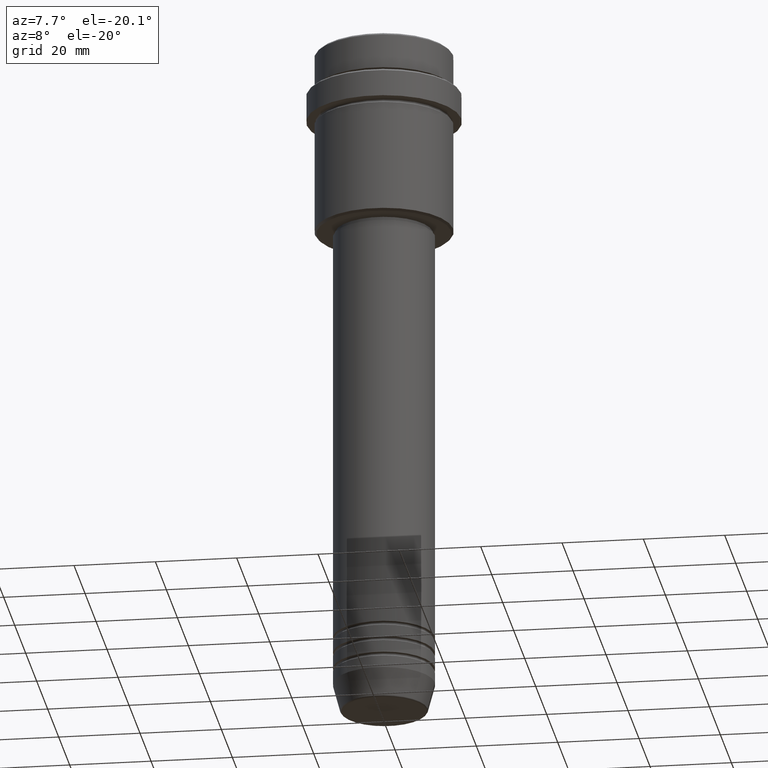
[diagram: clean part render]
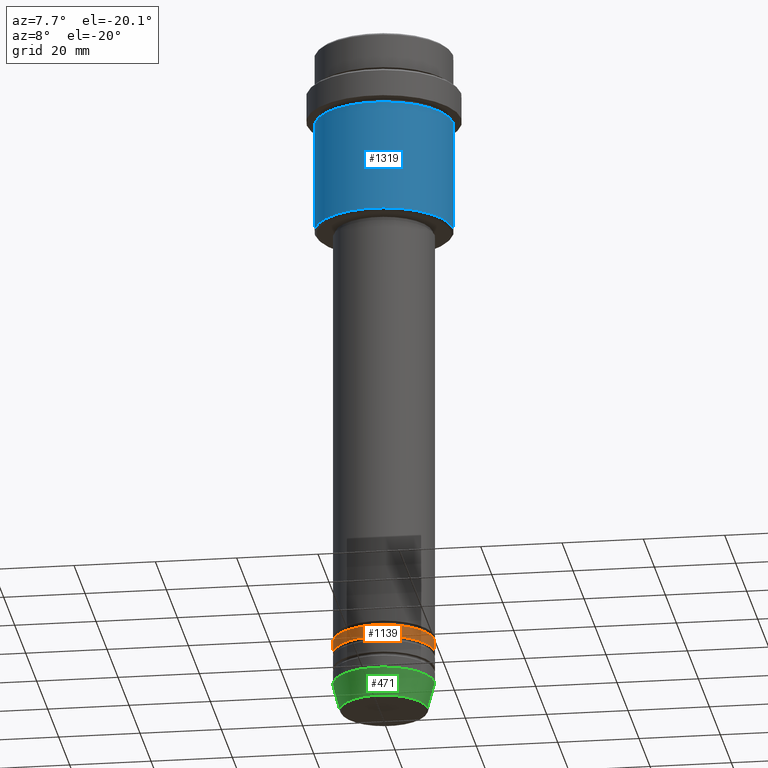
[diagram: same view with three faces highlighted in distinct colors, each labeled with its STEP entity id]
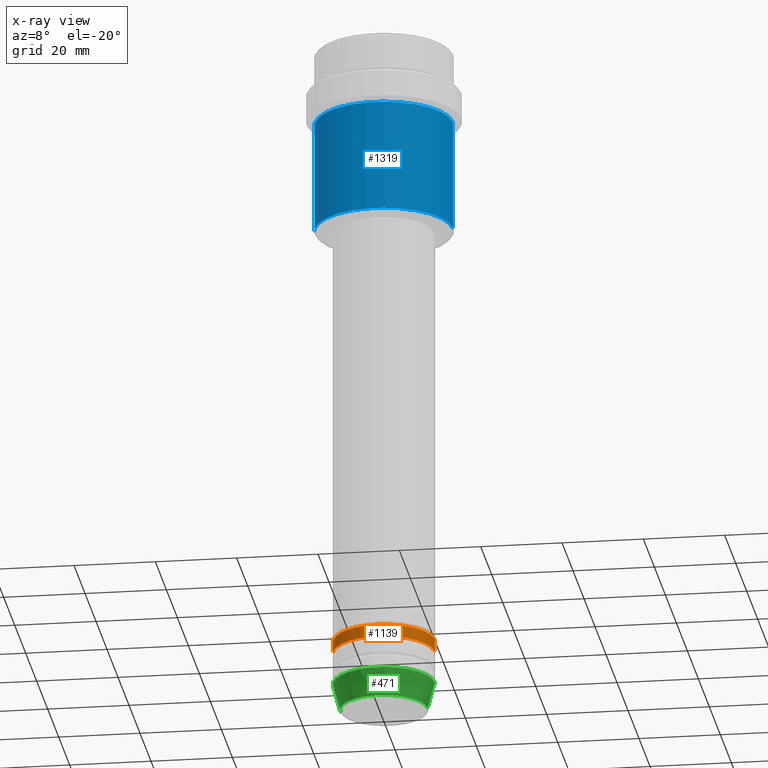
[diagram: x-ray of the same camera — body ghosted, the three highlighted faces saturated]
A machine part, auxiliary view with three faces highlighted in distinct colors.
The next image is the same camera in x-ray (body ghosted, the three faces saturated) — at least one of them is partly hidden behind the body in this view.
Their STEP definitions:

[orange] entity #1139 — the highlighted cylindrical surface (partial cylindrical patch) has radius 12.5 mm, axis along (-0, -0, 1).
#28 = ORIENTED_EDGE ( 'NONE', *, *, #528, .T. ) ;
#41 = VECTOR ( 'NONE', #1342, 1000.000000000000000 ) ;
#57 = DIRECTION ( 'NONE',  ( -0.000000000000000000, -0.000000000000000000, 1.000000000000000000 ) ) ;
#93 = CARTESIAN_POINT ( 'NONE',  ( -12.50000000000000000, 1.530808498934191521E-15, -154.9999999999998863 ) ) ;
#100 = DIRECTION ( 'NONE',  ( -0.000000000000000000, -0.000000000000000000, 1.000000000000000000 ) ) ;
#110 = FACE_OUTER_BOUND ( 'NONE', #1297, .T. ) ;
#249 = CARTESIAN_POINT ( 'NONE',  ( -12.50000000000000000, 1.530808498934191521E-15, -151.9999999999998863 ) ) ;
#367 = EDGE_CURVE ( 'NONE', #524, #985, #809, .T. ) ;
#401 = ORIENTED_EDGE ( 'NONE', *, *, #901, .F. ) ;
#470 = CARTESIAN_POINT ( 'NONE',  ( -12.50000000000000000, 1.530808498934191521E-15, 0.000000000000000000 ) ) ;
#524 = VERTEX_POINT ( 'NONE', #1138 ) ;
#528 = EDGE_CURVE ( 'NONE', #697, #524, #680, .T. ) ;
#568 = LINE ( 'NONE', #470, #41 ) ;
#575 = DIRECTION ( 'NONE',  ( -0.000000000000000000, -0.000000000000000000, 1.000000000000000000 ) ) ;
#589 = AXIS2_PLACEMENT_3D ( 'NONE', #631, #100, #1197 ) ;
#631 = CARTESIAN_POINT ( 'NONE',  ( 0.000000000000000000, 0.000000000000000000, -151.9999999999998863 ) ) ;
#671 = ORIENTED_EDGE ( 'NONE', *, *, #1184, .F. ) ;
#680 = CIRCLE ( 'NONE', #728, 12.50000000000000000 ) ;
#697 = VERTEX_POINT ( 'NONE', #93 ) ;
#723 = CARTESIAN_POINT ( 'NONE',  ( 0.000000000000000000, 0.000000000000000000, -154.9999999999998863 ) ) ;
#728 = AXIS2_PLACEMENT_3D ( 'NONE', #723, #57, #953 ) ;
#809 = LINE ( 'NONE', #993, #837 ) ;
#829 = CARTESIAN_POINT ( 'NONE',  ( 12.50000000000000000, 0.000000000000000000, -151.9999999999998863 ) ) ;
#837 = VECTOR ( 'NONE', #575, 1000.000000000000000 ) ;
#846 = DIRECTION ( 'NONE',  ( -0.000000000000000000, -0.000000000000000000, 1.000000000000000000 ) ) ;
#901 = EDGE_CURVE ( 'NONE', #697, #1286, #568, .T. ) ;
#953 = DIRECTION ( 'NONE',  ( 1.000000000000000000, 0.000000000000000000, 0.000000000000000000 ) ) ;
#985 = VERTEX_POINT ( 'NONE', #829 ) ;
#993 = CARTESIAN_POINT ( 'NONE',  ( 12.50000000000000000, 0.000000000000000000, 0.000000000000000000 ) ) ;
#1041 = CIRCLE ( 'NONE', #589, 12.50000000000000000 ) ;
#1138 = CARTESIAN_POINT ( 'NONE',  ( 12.50000000000000000, 0.000000000000000000, -154.9999999999998863 ) ) ;
#1139 = ADVANCED_FACE ( 'NONE', ( #110 ), #1386, .T. ) ;
#1184 = EDGE_CURVE ( 'NONE', #1286, #985, #1041, .T. ) ;
#1190 = CARTESIAN_POINT ( 'NONE',  ( 0.000000000000000000, 0.000000000000000000, 0.000000000000000000 ) ) ;
#1197 = DIRECTION ( 'NONE',  ( 1.000000000000000000, 0.000000000000000000, 0.000000000000000000 ) ) ;
#1202 = AXIS2_PLACEMENT_3D ( 'NONE', #1190, #846, #1309 ) ;
#1286 = VERTEX_POINT ( 'NONE', #249 ) ;
#1297 = EDGE_LOOP ( 'NONE', ( #401, #28, #1308, #671 ) ) ;
#1308 = ORIENTED_EDGE ( 'NONE', *, *, #367, .T. ) ;
#1309 = DIRECTION ( 'NONE',  ( 1.000000000000000000, 0.000000000000000000, 0.000000000000000000 ) ) ;
#1342 = DIRECTION ( 'NONE',  ( -0.000000000000000000, -0.000000000000000000, 1.000000000000000000 ) ) ;
#1386 = CYLINDRICAL_SURFACE ( 'NONE', #1202, 12.50000000000000000 ) ;

[blue] entity #1319 — the highlighted cylindrical surface (partial cylindrical patch) has radius 17 mm, axis along (-0, -0, 1).
#38 = DIRECTION ( 'NONE',  ( 1.000000000000000000, 0.000000000000000000, 0.000000000000000000 ) ) ;
#55 = DIRECTION ( 'NONE',  ( -1.000000000000000000, 0.000000000000000000, 0.000000000000000000 ) ) ;
#58 = CARTESIAN_POINT ( 'NONE',  ( -16.99999999999997868, 2.081899558550498702E-15, -18.00000000000000711 ) ) ;
#66 = CARTESIAN_POINT ( 'NONE',  ( -16.99999999999998934, 2.081899558550499491E-15, -45.50000000000000711 ) ) ;
#86 = CARTESIAN_POINT ( 'NONE',  ( 16.99999999999998934, 0.000000000000000000, 0.000000000000000000 ) ) ;
#103 = DIRECTION ( 'NONE',  ( -0.000000000000000000, -0.000000000000000000, 1.000000000000000000 ) ) ;
#108 = VERTEX_POINT ( 'NONE', #58 ) ;
#133 = DIRECTION ( 'NONE',  ( -0.000000000000000000, -0.000000000000000000, 1.000000000000000000 ) ) ;
#171 = AXIS2_PLACEMENT_3D ( 'NONE', #807, #813, #55 ) ;
#261 = CARTESIAN_POINT ( 'NONE',  ( -16.99999999999998934, 2.081899558550499491E-15, 0.000000000000000000 ) ) ;
#272 = CARTESIAN_POINT ( 'NONE',  ( 0.000000000000000000, 0.000000000000000000, -18.00000000000000711 ) ) ;
#317 = AXIS2_PLACEMENT_3D ( 'NONE', #272, #133, #38 ) ;
#407 = EDGE_CURVE ( 'NONE', #530, #108, #1226, .T. ) ;
#446 = CARTESIAN_POINT ( 'NONE',  ( 16.99999999999998934, 0.000000000000000000, -45.50000000000000711 ) ) ;
#463 = CARTESIAN_POINT ( 'NONE',  ( 0.000000000000000000, 0.000000000000000000, 0.000000000000000000 ) ) ;
#530 = VERTEX_POINT ( 'NONE', #66 ) ;
#571 = FACE_OUTER_BOUND ( 'NONE', #1289, .T. ) ;
#629 = VERTEX_POINT ( 'NONE', #446 ) ;
#729 = EDGE_CURVE ( 'NONE', #629, #770, #1059, .T. ) ;
#769 = VECTOR ( 'NONE', #1005, 1000.000000000000000 ) ;
#770 = VERTEX_POINT ( 'NONE', #1321 ) ;
#807 = CARTESIAN_POINT ( 'NONE',  ( 0.000000000000000000, 0.000000000000000000, -45.50000000000000711 ) ) ;
#813 = DIRECTION ( 'NONE',  ( -0.000000000000000000, -0.000000000000000000, 1.000000000000000000 ) ) ;
#866 = CIRCLE ( 'NONE', #317, 16.99999999999997868 ) ;
#898 = DIRECTION ( 'NONE',  ( 1.000000000000000000, 0.000000000000000000, 0.000000000000000000 ) ) ;
#922 = DIRECTION ( 'NONE',  ( -0.000000000000000000, -0.000000000000000000, 1.000000000000000000 ) ) ;
#969 = EDGE_CURVE ( 'NONE', #530, #629, #1065, .T. ) ;
#978 = ORIENTED_EDGE ( 'NONE', *, *, #969, .T. ) ;
#1005 = DIRECTION ( 'NONE',  ( -0.000000000000000000, -0.000000000000000000, 1.000000000000000000 ) ) ;
#1007 = CYLINDRICAL_SURFACE ( 'NONE', #1298, 16.99999999999998934 ) ;
#1059 = LINE ( 'NONE', #86, #1363 ) ;
#1065 = CIRCLE ( 'NONE', #171, 16.99999999999998934 ) ;
#1181 = ORIENTED_EDGE ( 'NONE', *, *, #1246, .F. ) ;
#1213 = ORIENTED_EDGE ( 'NONE', *, *, #407, .F. ) ;
#1226 = LINE ( 'NONE', #261, #769 ) ;
#1246 = EDGE_CURVE ( 'NONE', #108, #770, #866, .T. ) ;
#1262 = ORIENTED_EDGE ( 'NONE', *, *, #729, .T. ) ;
#1289 = EDGE_LOOP ( 'NONE', ( #1213, #978, #1262, #1181 ) ) ;
#1298 = AXIS2_PLACEMENT_3D ( 'NONE', #463, #922, #898 ) ;
#1319 = ADVANCED_FACE ( 'NONE', ( #571 ), #1007, .T. ) ;
#1321 = CARTESIAN_POINT ( 'NONE',  ( 16.99999999999997868, 0.000000000000000000, -18.00000000000000711 ) ) ;
#1363 = VECTOR ( 'NONE', #103, 1000.000000000000000 ) ;

[green] entity #471 — the highlighted conical surface has half-angle 15 deg.
#3 = VERTEX_POINT ( 'NONE', #1211 ) ;
#6 = DIRECTION ( 'NONE',  ( -0.000000000000000000, -0.000000000000000000, 1.000000000000000000 ) ) ;
#68 = VERTEX_POINT ( 'NONE', #627 ) ;
#79 = FACE_OUTER_BOUND ( 'NONE', #1331, .T. ) ;
#156 = DIRECTION ( 'NONE',  ( -0.000000000000000000, -0.000000000000000000, 1.000000000000000000 ) ) ;
#270 = DIRECTION ( 'NONE',  ( 1.000000000000000000, 0.000000000000000000, 0.000000000000000000 ) ) ;
#296 = CARTESIAN_POINT ( 'NONE',  ( 0.000000000000000000, 0.000000000000000000, -163.0000000000000000 ) ) ;
#301 = ORIENTED_EDGE ( 'NONE', *, *, #633, .F. ) ;
#365 = DIRECTION ( 'NONE',  ( -0.2588190451025213501, 3.169619151431772337E-17, 0.9659258262890680902 ) ) ;
#378 = LINE ( 'NONE', #509, #977 ) ;
#445 = ORIENTED_EDGE ( 'NONE', *, *, #875, .F. ) ;
#471 = ADVANCED_FACE ( 'NONE', ( #79 ), #929, .T. ) ;
#509 = CARTESIAN_POINT ( 'NONE',  ( 12.50000000000000000, 0.000000000000000000, -163.0000000000000000 ) ) ;
#625 = CARTESIAN_POINT ( 'NONE',  ( 0.000000000000000000, 0.000000000000000000, -169.6294095225512990 ) ) ;
#627 = CARTESIAN_POINT ( 'NONE',  ( 12.50000000000000000, 0.000000000000000000, -163.0000000000000000 ) ) ;
#633 = EDGE_CURVE ( 'NONE', #721, #68, #1387, .T. ) ;
#652 = CARTESIAN_POINT ( 'NONE',  ( -12.50000000000000000, 1.530808498934191521E-15, -163.0000000000000000 ) ) ;
#679 = CARTESIAN_POINT ( 'NONE',  ( 10.72365507213718416, 0.000000000000000000, -169.6294095225512990 ) ) ;
#721 = VERTEX_POINT ( 'NONE', #652 ) ;
#752 = VECTOR ( 'NONE', #365, 1000.000000000000000 ) ;
#772 = CIRCLE ( 'NONE', #1318, 10.72365507213718416 ) ;
#784 = VERTEX_POINT ( 'NONE', #679 ) ;
#792 = LINE ( 'NONE', #1223, #752 ) ;
#827 = ORIENTED_EDGE ( 'NONE', *, *, #926, .T. ) ;
#875 = EDGE_CURVE ( 'NONE', #3, #721, #792, .T. ) ;
#926 = EDGE_CURVE ( 'NONE', #784, #68, #378, .T. ) ;
#929 = CONICAL_SURFACE ( 'NONE', #1407, 12.50000000000000000, 0.2617993877991500740 ) ;
#948 = EDGE_CURVE ( 'NONE', #3, #784, #772, .T. ) ;
#952 = DIRECTION ( 'NONE',  ( -0.000000000000000000, -0.000000000000000000, 1.000000000000000000 ) ) ;
#961 = ORIENTED_EDGE ( 'NONE', *, *, #948, .T. ) ;
#977 = VECTOR ( 'NONE', #1044, 1000.000000000000000 ) ;
#986 = CARTESIAN_POINT ( 'NONE',  ( 0.000000000000000000, 0.000000000000000000, -163.0000000000000000 ) ) ;
#1016 = AXIS2_PLACEMENT_3D ( 'NONE', #986, #6, #1078 ) ;
#1044 = DIRECTION ( 'NONE',  ( 0.2588190451025213501, 0.000000000000000000, 0.9659258262890680902 ) ) ;
#1078 = DIRECTION ( 'NONE',  ( 1.000000000000000000, 0.000000000000000000, 0.000000000000000000 ) ) ;
#1211 = CARTESIAN_POINT ( 'NONE',  ( -10.72365507213718416, 1.422038742429750121E-15, -169.6294095225512990 ) ) ;
#1223 = CARTESIAN_POINT ( 'NONE',  ( -12.50000000000000000, 1.530808498934191521E-15, -163.0000000000000000 ) ) ;
#1318 = AXIS2_PLACEMENT_3D ( 'NONE', #625, #952, #1364 ) ;
#1331 = EDGE_LOOP ( 'NONE', ( #445, #961, #827, #301 ) ) ;
#1364 = DIRECTION ( 'NONE',  ( 1.000000000000000000, 0.000000000000000000, 0.000000000000000000 ) ) ;
#1387 = CIRCLE ( 'NONE', #1016, 12.50000000000000000 ) ;
#1407 = AXIS2_PLACEMENT_3D ( 'NONE', #296, #156, #270 ) ;